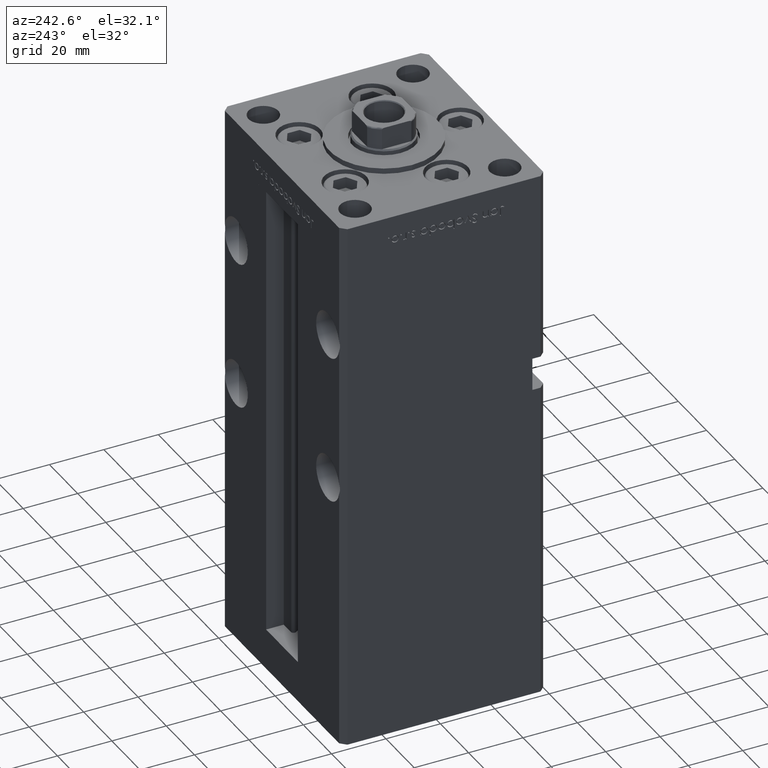
[diagram: clean part render]
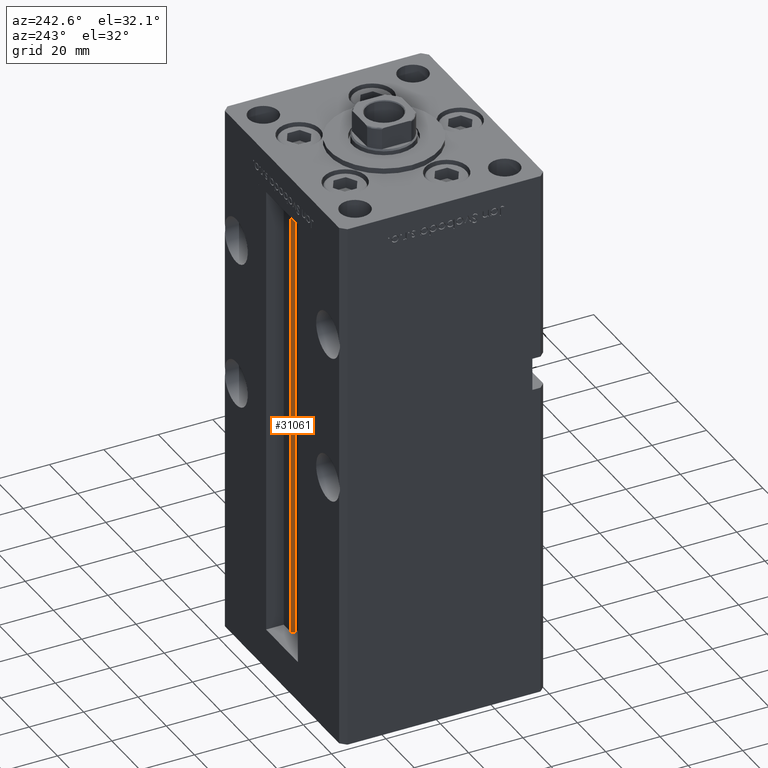
[diagram: same view with one face highlighted and labeled with its STEP entity id]
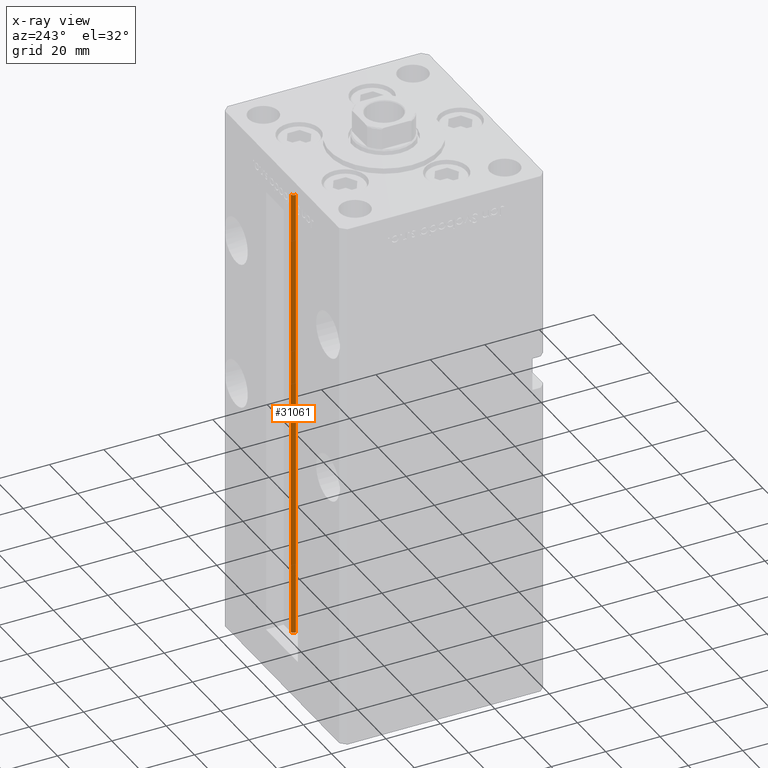
[diagram: x-ray of the same camera — body ghosted, the highlighted face saturated]
A machine part, auxiliary view. The second image highlights one B-rep face of the part: STEP entity #31061.
The next image is the same camera in x-ray: the body ghosted, the highlighted face saturated — about 0% of this face is hidden behind the body in this view.
In plain terms, the highlighted cylindrical surface (edge-blend (fillet) strip) has radius 0.9333 mm, axis along (0, 0, 1).
Its self-contained STEP definition (entity closure, byte-faithful):
#1392 = AXIS2_PLACEMENT_3D ( 'NONE', #29233, #12828, #20891 ) ;
#2158 = DIRECTION ( 'NONE',  ( 1.000000000000000000, 0.000000000000000000, 0.000000000000000000 ) ) ;
#6136 = CARTESIAN_POINT ( 'NONE',  ( 5.375042956467947164, 29.59999999999899245, 0.000000000000000000 ) ) ;
#6364 = AXIS2_PLACEMENT_3D ( 'NONE', #47878, #39251, #2158 ) ;
#6873 = DIRECTION ( 'NONE',  ( 1.000000000000000000, 0.000000000000000000, 0.000000000000000000 ) ) ;
#7440 = ORIENTED_EDGE ( 'NONE', *, *, #49007, .F. ) ;
#8607 = VERTEX_POINT ( 'NONE', #39380 ) ;
#9216 = VECTOR ( 'NONE', #35169, 1000.000000000000000 ) ;
#12828 = DIRECTION ( 'NONE',  ( -0.000000000000000000, -0.000000000000000000, 1.000000000000000000 ) ) ;
#13764 = CIRCLE ( 'NONE', #43823, 0.9333333333340008142 ) ;
#14086 = CIRCLE ( 'NONE', #6364, 0.9333333333340008142 ) ;
#15999 = CARTESIAN_POINT ( 'NONE',  ( 6.183333333333997928, 31.00000000000000000, 0.000000000000000000 ) ) ;
#20018 = EDGE_CURVE ( 'NONE', #8607, #41319, #14086, .T. ) ;
#20891 = DIRECTION ( 'NONE',  ( 1.000000000000000000, 0.000000000000000000, 0.000000000000000000 ) ) ;
#24390 = CYLINDRICAL_SURFACE ( 'NONE', #1392, 0.9333333333340008142 ) ;
#25367 = ORIENTED_EDGE ( 'NONE', *, *, #33206, .T. ) ;
#26861 = ORIENTED_EDGE ( 'NONE', *, *, #20018, .F. ) ;
#27804 = CARTESIAN_POINT ( 'NONE',  ( 5.375042956467944499, 29.59999999999899600, 168.5000000000000000 ) ) ;
#29233 = CARTESIAN_POINT ( 'NONE',  ( 6.183333333333997928, 30.06666666666599852, 0.000000000000000000 ) ) ;
#31061 = ADVANCED_FACE ( 'NONE', ( #49926 ), #24390, .T. ) ;
#32688 = DIRECTION ( 'NONE',  ( -0.000000000000000000, -0.000000000000000000, 1.000000000000000000 ) ) ;
#33206 = EDGE_CURVE ( 'NONE', #8607, #44265, #42698, .T. ) ;
#35169 = DIRECTION ( 'NONE',  ( -0.000000000000000000, -0.000000000000000000, 1.000000000000000000 ) ) ;
#35890 = CARTESIAN_POINT ( 'NONE',  ( 6.183333333333997928, 30.06666666666599852, 168.5000000000000000 ) ) ;
#39251 = DIRECTION ( 'NONE',  ( -0.000000000000000000, -0.000000000000000000, -1.000000000000000000 ) ) ;
#39380 = CARTESIAN_POINT ( 'NONE',  ( 5.375042956467947164, 29.59999999999899245, 0.000000000000000000 ) ) ;
#40739 = LINE ( 'NONE', #53134, #52511 ) ;
#41319 = VERTEX_POINT ( 'NONE', #15999 ) ;
#42255 = ORIENTED_EDGE ( 'NONE', *, *, #46984, .T. ) ;
#42698 = LINE ( 'NONE', #6136, #9216 ) ;
#43823 = AXIS2_PLACEMENT_3D ( 'NONE', #35890, #52054, #6873 ) ;
#44265 = VERTEX_POINT ( 'NONE', #27804 ) ;
#45125 = EDGE_LOOP ( 'NONE', ( #7440, #26861, #25367, #42255 ) ) ;
#46186 = VERTEX_POINT ( 'NONE', #51816 ) ;
#46984 = EDGE_CURVE ( 'NONE', #44265, #46186, #13764, .T. ) ;
#47878 = CARTESIAN_POINT ( 'NONE',  ( 6.183333333333997928, 30.06666666666599852, 0.000000000000000000 ) ) ;
#49007 = EDGE_CURVE ( 'NONE', #41319, #46186, #40739, .T. ) ;
#49926 = FACE_OUTER_BOUND ( 'NONE', #45125, .T. ) ;
#51816 = CARTESIAN_POINT ( 'NONE',  ( 6.183333333333997928, 31.00000000000000000, 168.5000000000000000 ) ) ;
#52054 = DIRECTION ( 'NONE',  ( 0.000000000000000000, 0.000000000000000000, -1.000000000000000000 ) ) ;
#52511 = VECTOR ( 'NONE', #32688, 1000.000000000000000 ) ;
#53134 = CARTESIAN_POINT ( 'NONE',  ( 6.183333333333997928, 31.00000000000000000, 0.000000000000000000 ) ) ;